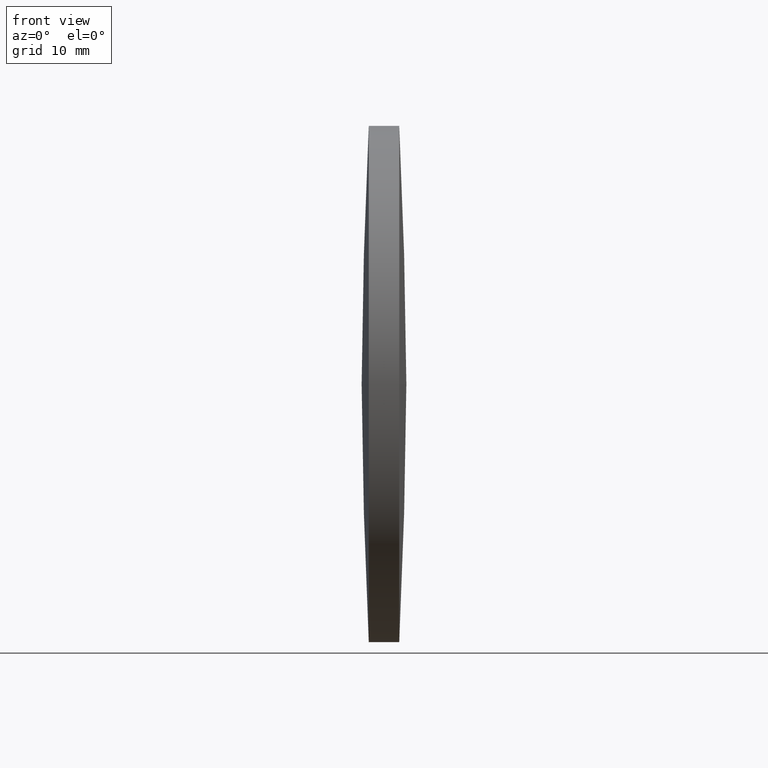
[diagram: clean part render]
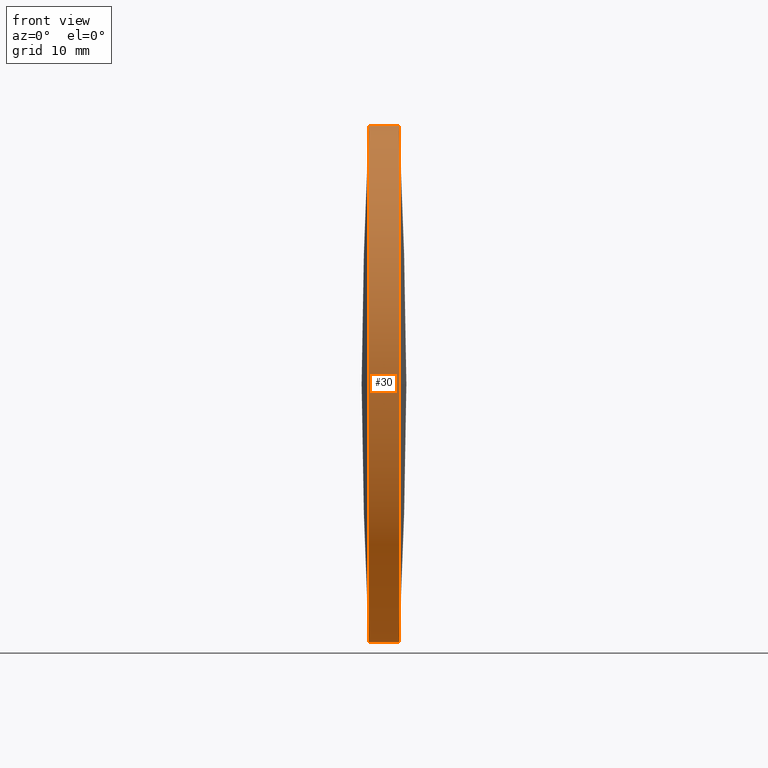
[diagram: same view with one face highlighted and labeled with its STEP entity id]
A machine part, front view. The second image highlights one B-rep face of the part: STEP entity #30.
In plain terms, the highlighted cylindrical surface (partial cylindrical patch) has radius 25.4 mm, axis along (-1, -0, -0).
Its self-contained STEP definition (entity closure, byte-faithful):
#2 = CIRCLE ( 'NONE', #60, 25.39999999999999100 ) ;
#6 = DIRECTION ( 'NONE',  ( 0.0000000000000000000, 0.0000000000000000000, 1.000000000000000000 ) ) ;
#15 = VERTEX_POINT ( 'NONE', #314 ) ;
#27 = CIRCLE ( 'NONE', #220, 25.39999999999999100 ) ;
#28 = DIRECTION ( 'NONE',  ( -1.000000000000000000, -0.0000000000000000000, -0.0000000000000000000 ) ) ;
#30 = ADVANCED_FACE ( 'NONE', ( #243 ), #297, .T. ) ;
#33 = EDGE_CURVE ( 'NONE', #55, #195, #2, .T. ) ;
#34 = DIRECTION ( 'NONE',  ( -1.000000000000000000, -0.0000000000000000000, -0.0000000000000000000 ) ) ;
#37 = CARTESIAN_POINT ( 'NONE',  ( 174.4163664064679400, 97.23222604636956100, 0.0000000000000000000 ) ) ;
#39 = CARTESIAN_POINT ( 'NONE',  ( 171.4164086921822200, 97.23222604636956100, 0.0000000000000000000 ) ) ;
#44 = AXIS2_PLACEMENT_3D ( 'NONE', #37, #81, #6 ) ;
#55 = VERTEX_POINT ( 'NONE', #265 ) ;
#60 = AXIS2_PLACEMENT_3D ( 'NONE', #137, #87, #107 ) ;
#81 = DIRECTION ( 'NONE',  ( -1.000000000000000000, -0.0000000000000000000, -0.0000000000000000000 ) ) ;
#83 = ORIENTED_EDGE ( 'NONE', *, *, #33, .T. ) ;
#87 = DIRECTION ( 'NONE',  ( -1.000000000000000000, -0.0000000000000000000, -0.0000000000000000000 ) ) ;
#90 = DIRECTION ( 'NONE',  ( -1.000000000000000000, -0.0000000000000000000, -0.0000000000000000000 ) ) ;
#95 = VERTEX_POINT ( 'NONE', #268 ) ;
#96 = AXIS2_PLACEMENT_3D ( 'NONE', #259, #28, #208 ) ;
#104 = VECTOR ( 'NONE', #34, 1000.000000000000000 ) ;
#107 = DIRECTION ( 'NONE',  ( 0.0000000000000000000, 0.0000000000000000000, 1.000000000000000000 ) ) ;
#108 = ORIENTED_EDGE ( 'NONE', *, *, #302, .F. ) ;
#112 = CARTESIAN_POINT ( 'NONE',  ( 165.7441079421506900, 97.23222604636956100, 25.39999999999999100 ) ) ;
#127 = VECTOR ( 'NONE', #320, 1000.000000000000000 ) ;
#135 = CARTESIAN_POINT ( 'NONE',  ( 174.4163664064679400, 97.23222604636956100, 25.39999999999999100 ) ) ;
#136 = EDGE_CURVE ( 'NONE', #177, #55, #171, .T. ) ;
#137 = CARTESIAN_POINT ( 'NONE',  ( 174.4163664064679400, 97.23222604636956100, 0.0000000000000000000 ) ) ;
#171 = CIRCLE ( 'NONE', #44, 25.39999999999999100 ) ;
#172 = VERTEX_POINT ( 'NONE', #296 ) ;
#176 = LINE ( 'NONE', #112, #127 ) ;
#177 = VERTEX_POINT ( 'NONE', #295 ) ;
#186 = ORIENTED_EDGE ( 'NONE', *, *, #136, .T. ) ;
#191 = LINE ( 'NONE', #292, #104 ) ;
#195 = VERTEX_POINT ( 'NONE', #135 ) ;
#197 = AXIS2_PLACEMENT_3D ( 'NONE', #39, #90, #272 ) ;
#203 = EDGE_CURVE ( 'NONE', #177, #95, #191, .T. ) ;
#205 = EDGE_CURVE ( 'NONE', #195, #15, #176, .T. ) ;
#208 = DIRECTION ( 'NONE',  ( 0.0000000000000000000, 0.0000000000000000000, 1.000000000000000000 ) ) ;
#209 = CIRCLE ( 'NONE', #197, 25.39999999999999100 ) ;
#218 = DIRECTION ( 'NONE',  ( -1.000000000000000000, -0.0000000000000000000, -0.0000000000000000000 ) ) ;
#220 = AXIS2_PLACEMENT_3D ( 'NONE', #325, #218, #246 ) ;
#236 = ORIENTED_EDGE ( 'NONE', *, *, #203, .F. ) ;
#243 = FACE_OUTER_BOUND ( 'NONE', #307, .T. ) ;
#246 = DIRECTION ( 'NONE',  ( 0.0000000000000000000, 0.0000000000000000000, 1.000000000000000000 ) ) ;
#259 = CARTESIAN_POINT ( 'NONE',  ( 165.7441079421506900, 97.23222604636956100, 0.0000000000000000000 ) ) ;
#265 = CARTESIAN_POINT ( 'NONE',  ( 174.4163664064679700, 71.83222604636942800, -3.110602869834204700E-015 ) ) ;
#268 = CARTESIAN_POINT ( 'NONE',  ( 171.4164086921822200, 97.23222604636956100, -25.39999999999999100 ) ) ;
#272 = DIRECTION ( 'NONE',  ( 0.0000000000000000000, 0.0000000000000000000, 1.000000000000000000 ) ) ;
#276 = EDGE_CURVE ( 'NONE', #95, #172, #27, .T. ) ;
#292 = CARTESIAN_POINT ( 'NONE',  ( 165.7441079421506900, 97.23222604636956100, -25.39999999999999100 ) ) ;
#295 = CARTESIAN_POINT ( 'NONE',  ( 174.4163664064679400, 97.23222604636956100, -25.39999999999999100 ) ) ;
#296 = CARTESIAN_POINT ( 'NONE',  ( 171.4164086921822200, 71.83222604636974000, -3.110602869834177100E-015 ) ) ;
#297 = CYLINDRICAL_SURFACE ( 'NONE', #96, 25.39999999999999100 ) ;
#302 = EDGE_CURVE ( 'NONE', #172, #15, #209, .T. ) ;
#303 = ORIENTED_EDGE ( 'NONE', *, *, #205, .T. ) ;
#307 = EDGE_LOOP ( 'NONE', ( #236, #186, #83, #303, #108, #343 ) ) ;
#314 = CARTESIAN_POINT ( 'NONE',  ( 171.4164086921822200, 97.23222604636956100, 25.39999999999999100 ) ) ;
#320 = DIRECTION ( 'NONE',  ( -1.000000000000000000, -0.0000000000000000000, -0.0000000000000000000 ) ) ;
#325 = CARTESIAN_POINT ( 'NONE',  ( 171.4164086921822200, 97.23222604636956100, 0.0000000000000000000 ) ) ;
#343 = ORIENTED_EDGE ( 'NONE', *, *, #276, .F. ) ;